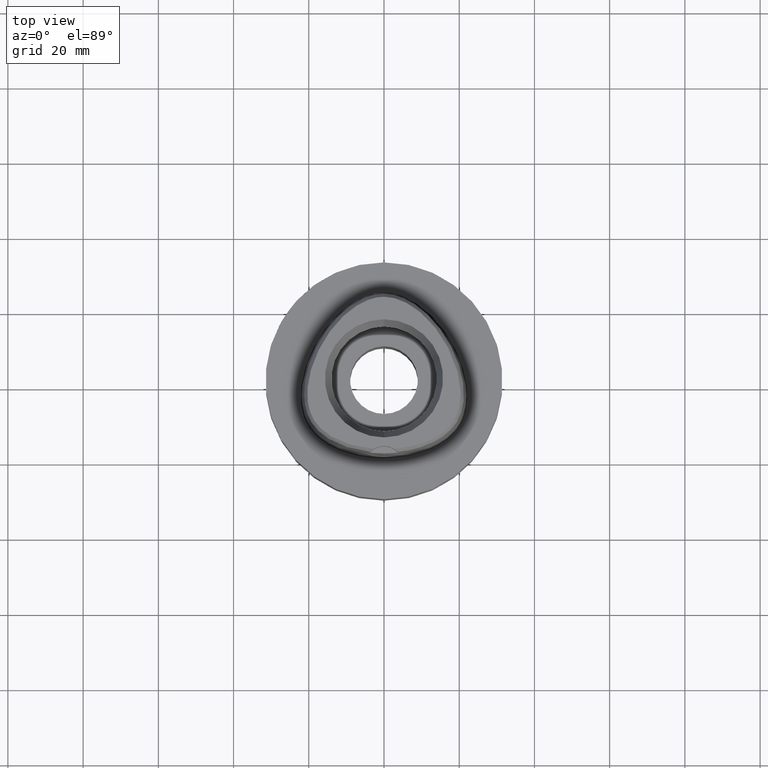
[diagram: clean part render]
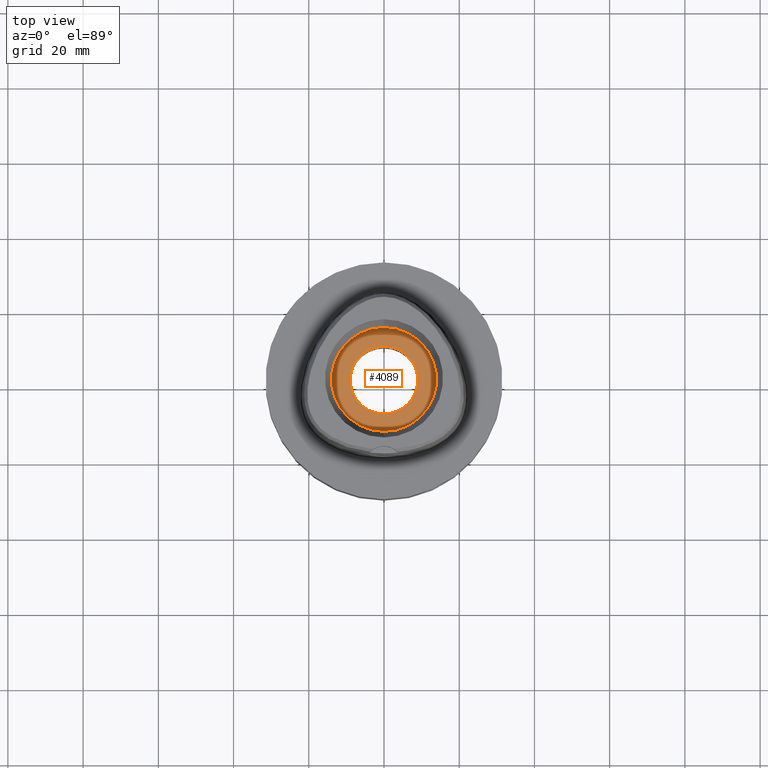
[diagram: same view with one face highlighted and labeled with its STEP entity id]
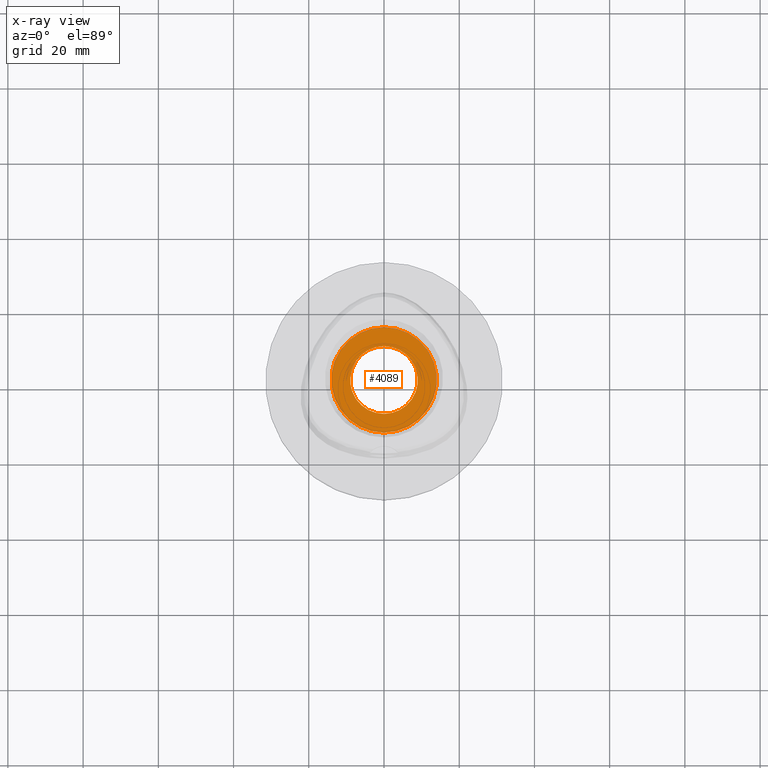
[diagram: x-ray of the same camera — body ghosted, the highlighted face saturated]
A machine part, top view. The second image highlights one B-rep face of the part: STEP entity #4089.
The next image is the same camera in x-ray: the body ghosted, the highlighted face saturated — about 0% of this face is hidden behind the body in this view.
In plain terms, the highlighted planar face has unit normal (0, 0, -1).
Its self-contained STEP definition (entity closure, byte-faithful):
#86 = CIRCLE ( 'NONE', #1061, 9.000000000000000000 ) ;
#87 = VERTEX_POINT ( 'NONE', #2595 ) ;
#162 = AXIS2_PLACEMENT_3D ( 'NONE', #4071, #4098, #2923 ) ;
#368 = DIRECTION ( 'NONE',  ( 0.0000000000000000000, 0.0000000000000000000, -1.000000000000000000 ) ) ;
#472 = VERTEX_POINT ( 'NONE', #3203 ) ;
#680 = EDGE_CURVE ( 'NONE', #472, #1312, #3910, .T. ) ;
#712 = DIRECTION ( 'NONE',  ( 0.0000000000000000000, -1.000000000000000000, 0.0000000000000000000 ) ) ;
#795 = CIRCLE ( 'NONE', #4235, 14.00000000000000000 ) ;
#905 = AXIS2_PLACEMENT_3D ( 'NONE', #1471, #3019, #712 ) ;
#934 = CARTESIAN_POINT ( 'NONE',  ( 0.0000000000000000000, 0.0000000000000000000, 11.00000000000000000 ) ) ;
#1061 = AXIS2_PLACEMENT_3D ( 'NONE', #934, #4397, #4758 ) ;
#1084 = EDGE_CURVE ( 'NONE', #87, #1675, #795, .T. ) ;
#1114 = FACE_BOUND ( 'NONE', #2891, .T. ) ;
#1312 = VERTEX_POINT ( 'NONE', #1723 ) ;
#1453 = CARTESIAN_POINT ( 'NONE',  ( 0.0000000000000000000, 0.0000000000000000000, 11.00000000000000000 ) ) ;
#1471 = CARTESIAN_POINT ( 'NONE',  ( 0.0000000000000000000, 0.0000000000000000000, 11.00000000000000000 ) ) ;
#1675 = VERTEX_POINT ( 'NONE', #3491 ) ;
#1723 = CARTESIAN_POINT ( 'NONE',  ( 0.0000000000000000000, 9.000000000000000000, 11.00000000000000000 ) ) ;
#2492 = AXIS2_PLACEMENT_3D ( 'NONE', #1453, #368, #4555 ) ;
#2509 = EDGE_CURVE ( 'NONE', #1312, #472, #86, .T. ) ;
#2527 = ORIENTED_EDGE ( 'NONE', *, *, #2749, .F. ) ;
#2595 = CARTESIAN_POINT ( 'NONE',  ( 0.0000000000000000000, 14.00000000000000000, 11.00000000000000000 ) ) ;
#2600 = ORIENTED_EDGE ( 'NONE', *, *, #1084, .F. ) ;
#2672 = EDGE_LOOP ( 'NONE', ( #2527, #2600 ) ) ;
#2749 = EDGE_CURVE ( 'NONE', #1675, #87, #4810, .T. ) ;
#2891 = EDGE_LOOP ( 'NONE', ( #4157, #4275 ) ) ;
#2923 = DIRECTION ( 'NONE',  ( 0.0000000000000000000, -1.000000000000000000, 0.0000000000000000000 ) ) ;
#3019 = DIRECTION ( 'NONE',  ( 0.0000000000000000000, 0.0000000000000000000, -1.000000000000000000 ) ) ;
#3024 = FACE_OUTER_BOUND ( 'NONE', #2672, .T. ) ;
#3167 = DIRECTION ( 'NONE',  ( 0.0000000000000000000, 1.000000000000000000, 0.0000000000000000000 ) ) ;
#3203 = CARTESIAN_POINT ( 'NONE',  ( 0.0000000000000000000, -9.000000000000000000, 11.00000000000000000 ) ) ;
#3491 = CARTESIAN_POINT ( 'NONE',  ( 0.0000000000000000000, -14.00000000000000000, 11.00000000000000000 ) ) ;
#3910 = CIRCLE ( 'NONE', #162, 9.000000000000000000 ) ;
#4071 = CARTESIAN_POINT ( 'NONE',  ( 0.0000000000000000000, 0.0000000000000000000, 11.00000000000000000 ) ) ;
#4089 = ADVANCED_FACE ( 'NONE', ( #3024, #1114 ), #4608, .F. ) ;
#4098 = DIRECTION ( 'NONE',  ( 0.0000000000000000000, 0.0000000000000000000, 1.000000000000000000 ) ) ;
#4157 = ORIENTED_EDGE ( 'NONE', *, *, #680, .F. ) ;
#4235 = AXIS2_PLACEMENT_3D ( 'NONE', #4316, #4697, #3167 ) ;
#4275 = ORIENTED_EDGE ( 'NONE', *, *, #2509, .F. ) ;
#4316 = CARTESIAN_POINT ( 'NONE',  ( 0.0000000000000000000, 0.0000000000000000000, 11.00000000000000000 ) ) ;
#4397 = DIRECTION ( 'NONE',  ( 0.0000000000000000000, 0.0000000000000000000, 1.000000000000000000 ) ) ;
#4555 = DIRECTION ( 'NONE',  ( 0.0000000000000000000, -1.000000000000000000, 0.0000000000000000000 ) ) ;
#4608 = PLANE ( 'NONE',  #2492 ) ;
#4697 = DIRECTION ( 'NONE',  ( 0.0000000000000000000, 0.0000000000000000000, -1.000000000000000000 ) ) ;
#4758 = DIRECTION ( 'NONE',  ( 0.0000000000000000000, 1.000000000000000000, 0.0000000000000000000 ) ) ;
#4810 = CIRCLE ( 'NONE', #905, 14.00000000000000000 ) ;